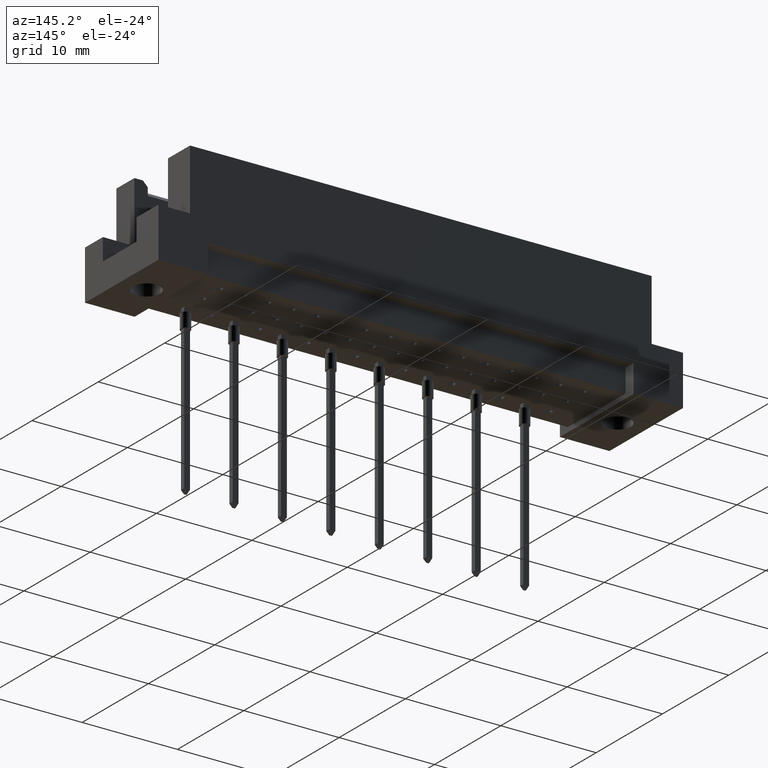
[diagram: clean part render]
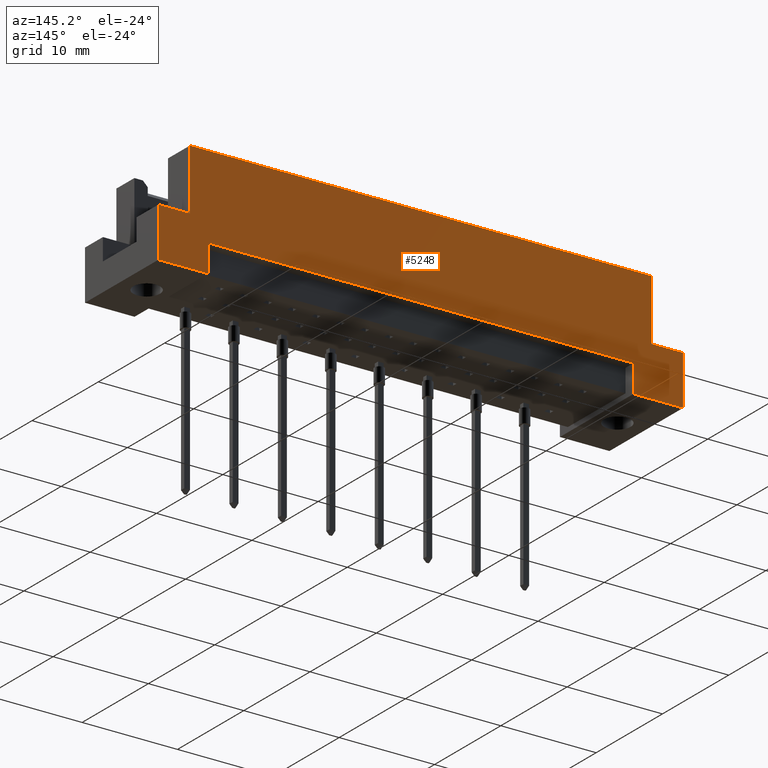
[diagram: same view with one face highlighted and labeled with its STEP entity id]
A machine part, auxiliary view. The second image highlights one B-rep face of the part: STEP entity #5248.
In plain terms, the highlighted planar face has unit normal (0, 1, 0).
Its self-contained STEP definition (entity closure, byte-faithful):
#16 = EDGE_CURVE ( 'NONE', #6459, #918, #8418, .T. ) ;
#24 = ORIENTED_EDGE ( 'NONE', *, *, #8812, .T. ) ;
#203 = VECTOR ( 'NONE', #4609, 1000.000000000000000 ) ;
#222 = VERTEX_POINT ( 'NONE', #8793 ) ;
#234 = ORIENTED_EDGE ( 'NONE', *, *, #935, .F. ) ;
#526 = DIRECTION ( 'NONE',  ( 2.990902544787598592E-16, 0.0000000000000000000, 1.000000000000000000 ) ) ;
#551 = CARTESIAN_POINT ( 'NONE',  ( -27.50000000000000000, 11.09999999999999964, 0.0000000000000000000 ) ) ;
#562 = EDGE_CURVE ( 'NONE', #5241, #6841, #599, .T. ) ;
#575 = ORIENTED_EDGE ( 'NONE', *, *, #5811, .T. ) ;
#599 = LINE ( 'NONE', #3459, #8113 ) ;
#823 = DIRECTION ( 'NONE',  ( -1.000000000000000000, -5.256737805990323064E-16, 0.0000000000000000000 ) ) ;
#918 = VERTEX_POINT ( 'NONE', #7736 ) ;
#935 = EDGE_CURVE ( 'NONE', #9107, #918, #5125, .T. ) ;
#1088 = VERTEX_POINT ( 'NONE', #5354 ) ;
#1202 = EDGE_CURVE ( 'NONE', #8653, #222, #8507, .T. ) ;
#1214 = DIRECTION ( 'NONE',  ( -0.0000000000000000000, -0.0000000000000000000, -1.000000000000000000 ) ) ;
#1297 = VERTEX_POINT ( 'NONE', #3058 ) ;
#1300 = DIRECTION ( 'NONE',  ( -1.000000000000000000, -0.0000000000000000000, 1.224646799147353207E-16 ) ) ;
#1513 = CARTESIAN_POINT ( 'NONE',  ( -27.50000000000000000, 11.09999999999999964, 5.199999999999995737 ) ) ;
#1748 = CARTESIAN_POINT ( 'NONE',  ( -27.50000000000000000, 11.09999999999999964, 0.0000000000000000000 ) ) ;
#1783 = DIRECTION ( 'NONE',  ( -0.0000000000000000000, -0.0000000000000000000, 1.000000000000000000 ) ) ;
#1823 = CARTESIAN_POINT ( 'NONE',  ( 24.19999999999999929, 11.09999999999999787, 5.199999999999995737 ) ) ;
#1990 = VECTOR ( 'NONE', #7327, 1000.000000000000000 ) ;
#2253 = VERTEX_POINT ( 'NONE', #2374 ) ;
#2259 = LINE ( 'NONE', #6512, #2440 ) ;
#2374 = CARTESIAN_POINT ( 'NONE',  ( -24.19999999999999929, 11.09999999999999787, 11.59999999999999609 ) ) ;
#2440 = VECTOR ( 'NONE', #823, 1000.000000000000000 ) ;
#2485 = CARTESIAN_POINT ( 'NONE',  ( 27.50000000000000000, 11.09999999999999964, 5.199999999999995737 ) ) ;
#2657 = VECTOR ( 'NONE', #1783, 1000.000000000000000 ) ;
#2959 = LINE ( 'NONE', #5256, #2657 ) ;
#3058 = CARTESIAN_POINT ( 'NONE',  ( 24.19999999999999929, 11.09999999999999787, 11.59999999999999609 ) ) ;
#3199 = ORIENTED_EDGE ( 'NONE', *, *, #16, .T. ) ;
#3459 = CARTESIAN_POINT ( 'NONE',  ( 27.50000000000000000, 11.09999999999999964, -6.735557395310442615E-15 ) ) ;
#3468 = CARTESIAN_POINT ( 'NONE',  ( 22.30000000000000071, 11.09999999999999964, 2.899999999999999911 ) ) ;
#3530 = EDGE_LOOP ( 'NONE', ( #6284, #8674, #4845, #24, #3199, #234, #3636, #8115, #4122, #3646, #7635, #575 ) ) ;
#3557 = LINE ( 'NONE', #7897, #3632 ) ;
#3632 = VECTOR ( 'NONE', #7188, 1000.000000000000000 ) ;
#3636 = ORIENTED_EDGE ( 'NONE', *, *, #3849, .T. ) ;
#3646 = ORIENTED_EDGE ( 'NONE', *, *, #4608, .F. ) ;
#3751 = CARTESIAN_POINT ( 'NONE',  ( 27.50000000000000000, 11.09999999999999964, -6.735557395310442615E-15 ) ) ;
#3786 = CARTESIAN_POINT ( 'NONE',  ( -22.30000000000000071, 11.09999999999999964, 0.5000000000000000000 ) ) ;
#3849 = EDGE_CURVE ( 'NONE', #9107, #2253, #2959, .T. ) ;
#3851 = CARTESIAN_POINT ( 'NONE',  ( -27.49999999999999645, 11.09999999999999964, 11.59999999999999964 ) ) ;
#3950 = DIRECTION ( 'NONE',  ( 0.0000000000000000000, -0.0000000000000000000, 1.000000000000000000 ) ) ;
#4060 = EDGE_CURVE ( 'NONE', #222, #1088, #4289, .T. ) ;
#4122 = ORIENTED_EDGE ( 'NONE', *, *, #5184, .F. ) ;
#4159 = VECTOR ( 'NONE', #9120, 1000.000000000000000 ) ;
#4289 = LINE ( 'NONE', #4817, #7576 ) ;
#4293 = LINE ( 'NONE', #3786, #1990 ) ;
#4608 = EDGE_CURVE ( 'NONE', #5241, #6126, #2259, .T. ) ;
#4609 = DIRECTION ( 'NONE',  ( -0.0000000000000000000, -0.0000000000000000000, 1.000000000000000000 ) ) ;
#4817 = CARTESIAN_POINT ( 'NONE',  ( 22.30000000000000071, 11.09999999999999964, 0.5000000000000000000 ) ) ;
#4845 = ORIENTED_EDGE ( 'NONE', *, *, #8824, .T. ) ;
#5125 = LINE ( 'NONE', #1513, #7498 ) ;
#5184 = EDGE_CURVE ( 'NONE', #6126, #1297, #8846, .T. ) ;
#5241 = VERTEX_POINT ( 'NONE', #2485 ) ;
#5248 = ADVANCED_FACE ( 'NONE', ( #5970 ), #7448, .T. ) ;
#5256 = CARTESIAN_POINT ( 'NONE',  ( -24.19999999999999929, 11.09999999999999787, 5.199999999999995737 ) ) ;
#5327 = CARTESIAN_POINT ( 'NONE',  ( -22.30000000000000071, 11.09999999999999964, 0.0000000000000000000 ) ) ;
#5354 = CARTESIAN_POINT ( 'NONE',  ( 22.30000000000000071, 11.09999999999999964, 0.0000000000000000000 ) ) ;
#5547 = CARTESIAN_POINT ( 'NONE',  ( -24.19999999999999929, 11.09999999999999787, 5.199999999999995737 ) ) ;
#5811 = EDGE_CURVE ( 'NONE', #6841, #1088, #6144, .T. ) ;
#5970 = FACE_OUTER_BOUND ( 'NONE', #3530, .T. ) ;
#6126 = VERTEX_POINT ( 'NONE', #8513 ) ;
#6144 = LINE ( 'NONE', #6244, #6208 ) ;
#6208 = VECTOR ( 'NONE', #8966, 1000.000000000000000 ) ;
#6244 = CARTESIAN_POINT ( 'NONE',  ( -27.50000000000000000, 11.09999999999999964, 0.0000000000000000000 ) ) ;
#6284 = ORIENTED_EDGE ( 'NONE', *, *, #4060, .F. ) ;
#6289 = DIRECTION ( 'NONE',  ( 2.990902544787598592E-16, -0.0000000000000000000, -1.000000000000000000 ) ) ;
#6394 = CARTESIAN_POINT ( 'NONE',  ( -27.50000000000000000, 11.09999999999999964, 0.0000000000000000000 ) ) ;
#6459 = VERTEX_POINT ( 'NONE', #1748 ) ;
#6512 = CARTESIAN_POINT ( 'NONE',  ( 27.50000000000000000, 11.09999999999999964, 5.199999999999995737 ) ) ;
#6663 = AXIS2_PLACEMENT_3D ( 'NONE', #3851, #6738, #3950 ) ;
#6708 = EDGE_CURVE ( 'NONE', #2253, #1297, #3557, .T. ) ;
#6738 = DIRECTION ( 'NONE',  ( -0.0000000000000000000, 1.000000000000000000, 0.0000000000000000000 ) ) ;
#6841 = VERTEX_POINT ( 'NONE', #3751 ) ;
#7188 = DIRECTION ( 'NONE',  ( 1.000000000000000000, 0.0000000000000000000, -1.261617073437677999E-16 ) ) ;
#7327 = DIRECTION ( 'NONE',  ( -0.0000000000000000000, -0.0000000000000000000, -1.000000000000000000 ) ) ;
#7448 = PLANE ( 'NONE',  #6663 ) ;
#7498 = VECTOR ( 'NONE', #8107, 1000.000000000000000 ) ;
#7576 = VECTOR ( 'NONE', #1214, 1000.000000000000000 ) ;
#7635 = ORIENTED_EDGE ( 'NONE', *, *, #562, .T. ) ;
#7643 = VERTEX_POINT ( 'NONE', #5327 ) ;
#7649 = VECTOR ( 'NONE', #526, 1000.000000000000000 ) ;
#7736 = CARTESIAN_POINT ( 'NONE',  ( -27.50000000000000000, 11.09999999999999964, 5.199999999999995737 ) ) ;
#7897 = CARTESIAN_POINT ( 'NONE',  ( -27.49999999999999645, 11.09999999999999964, 11.59999999999999964 ) ) ;
#8107 = DIRECTION ( 'NONE',  ( -1.000000000000000000, 5.256737805990323064E-16, -0.0000000000000000000 ) ) ;
#8113 = VECTOR ( 'NONE', #6289, 1000.000000000000000 ) ;
#8115 = ORIENTED_EDGE ( 'NONE', *, *, #6708, .T. ) ;
#8418 = LINE ( 'NONE', #6394, #7649 ) ;
#8455 = VECTOR ( 'NONE', #1300, 1000.000000000000000 ) ;
#8507 = LINE ( 'NONE', #3468, #4159 ) ;
#8513 = CARTESIAN_POINT ( 'NONE',  ( 24.19999999999999929, 11.09999999999999787, 5.199999999999995737 ) ) ;
#8653 = VERTEX_POINT ( 'NONE', #9241 ) ;
#8674 = ORIENTED_EDGE ( 'NONE', *, *, #1202, .F. ) ;
#8793 = CARTESIAN_POINT ( 'NONE',  ( 22.30000000000000071, 11.09999999999999964, 2.899999999999999911 ) ) ;
#8812 = EDGE_CURVE ( 'NONE', #7643, #6459, #9148, .T. ) ;
#8824 = EDGE_CURVE ( 'NONE', #8653, #7643, #4293, .T. ) ;
#8846 = LINE ( 'NONE', #1823, #203 ) ;
#8966 = DIRECTION ( 'NONE',  ( -1.000000000000000000, -0.0000000000000000000, 1.224646799147353207E-16 ) ) ;
#9107 = VERTEX_POINT ( 'NONE', #5547 ) ;
#9120 = DIRECTION ( 'NONE',  ( 1.000000000000000000, -0.0000000000000000000, -0.0000000000000000000 ) ) ;
#9148 = LINE ( 'NONE', #551, #8455 ) ;
#9241 = CARTESIAN_POINT ( 'NONE',  ( -22.30000000000000071, 11.09999999999999964, 2.899999999999999911 ) ) ;